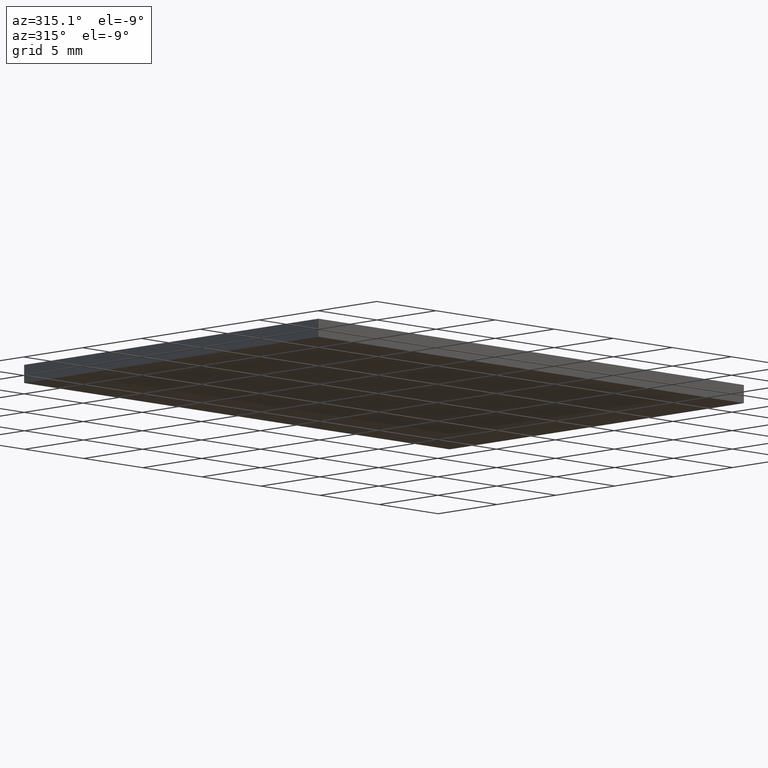
[diagram: clean part render]
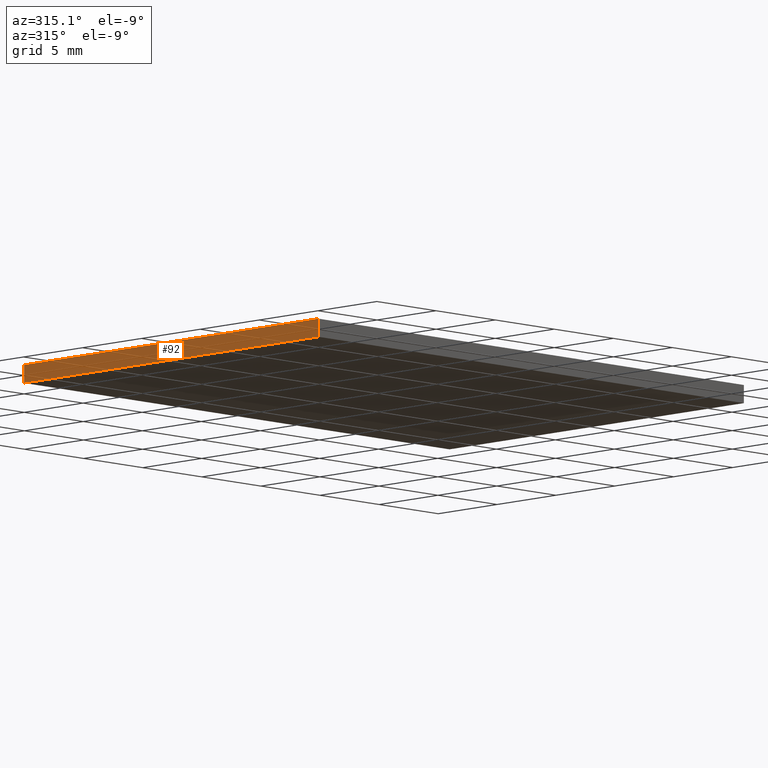
[diagram: same view with one face highlighted and labeled with its STEP entity id]
A machine part, auxiliary view. The second image highlights one B-rep face of the part: STEP entity #92.
In plain terms, the highlighted planar face has unit normal (1, 0, 0).
Its self-contained STEP definition (entity closure, byte-faithful):
#1 = CARTESIAN_POINT ( 'NONE',  ( 0.000000000000000000, 0.000000000000000000, 1.100000000000000089 ) ) ;
#7 = CARTESIAN_POINT ( 'NONE',  ( 0.000000000000000000, 0.000000000000000000, 1.100000000000000089 ) ) ;
#10 = DIRECTION ( 'NONE',  ( -0.000000000000000000, -0.000000000000000000, -1.000000000000000000 ) ) ;
#11 = CARTESIAN_POINT ( 'NONE',  ( 0.000000000000000000, 25.00000000000000000, 0.000000000000000000 ) ) ;
#12 = LINE ( 'NONE', #70, #65 ) ;
#15 = VERTEX_POINT ( 'NONE', #73 ) ;
#18 = FACE_OUTER_BOUND ( 'NONE', #122, .T. ) ;
#23 = CARTESIAN_POINT ( 'NONE',  ( 0.000000000000000000, 0.000000000000000000, 1.100000000000000089 ) ) ;
#25 = EDGE_CURVE ( 'NONE', #93, #123, #118, .T. ) ;
#35 = CARTESIAN_POINT ( 'NONE',  ( 0.000000000000000000, 0.000000000000000000, 0.000000000000000000 ) ) ;
#37 = EDGE_CURVE ( 'NONE', #93, #135, #171, .T. ) ;
#43 = CARTESIAN_POINT ( 'NONE',  ( 0.000000000000000000, 25.00000000000000000, 1.100000000000000089 ) ) ;
#45 = ORIENTED_EDGE ( 'NONE', *, *, #25, .T. ) ;
#65 = VECTOR ( 'NONE', #10, 1000.000000000000000 ) ;
#67 = CARTESIAN_POINT ( 'NONE',  ( 0.000000000000000000, 25.00000000000000000, 1.100000000000000089 ) ) ;
#70 = CARTESIAN_POINT ( 'NONE',  ( 0.000000000000000000, 0.000000000000000000, 1.100000000000000089 ) ) ;
#71 = VECTOR ( 'NONE', #95, 1000.000000000000000 ) ;
#73 = CARTESIAN_POINT ( 'NONE',  ( 0.000000000000000000, 0.000000000000000000, 0.000000000000000000 ) ) ;
#75 = DIRECTION ( 'NONE',  ( -0.000000000000000000, -0.000000000000000000, -1.000000000000000000 ) ) ;
#82 = EDGE_CURVE ( 'NONE', #123, #15, #110, .T. ) ;
#92 = ADVANCED_FACE ( 'NONE', ( #18 ), #159, .F. ) ;
#93 = VERTEX_POINT ( 'NONE', #67 ) ;
#95 = DIRECTION ( 'NONE',  ( -0.000000000000000000, -1.000000000000000000, -0.000000000000000000 ) ) ;
#102 = DIRECTION ( 'NONE',  ( -0.000000000000000000, -1.000000000000000000, -0.000000000000000000 ) ) ;
#109 = ORIENTED_EDGE ( 'NONE', *, *, #37, .F. ) ;
#110 = LINE ( 'NONE', #35, #71 ) ;
#118 = LINE ( 'NONE', #43, #142 ) ;
#122 = EDGE_LOOP ( 'NONE', ( #202, #139, #109, #45 ) ) ;
#123 = VERTEX_POINT ( 'NONE', #11 ) ;
#129 = EDGE_CURVE ( 'NONE', #135, #15, #12, .T. ) ;
#135 = VERTEX_POINT ( 'NONE', #23 ) ;
#139 = ORIENTED_EDGE ( 'NONE', *, *, #129, .F. ) ;
#142 = VECTOR ( 'NONE', #75, 1000.000000000000000 ) ;
#159 = PLANE ( 'NONE',  #184 ) ;
#160 = DIRECTION ( 'NONE',  ( 0.000000000000000000, 0.000000000000000000, -1.000000000000000000 ) ) ;
#170 = VECTOR ( 'NONE', #102, 1000.000000000000000 ) ;
#171 = LINE ( 'NONE', #1, #170 ) ;
#184 = AXIS2_PLACEMENT_3D ( 'NONE', #7, #189, #160 ) ;
#189 = DIRECTION ( 'NONE',  ( 1.000000000000000000, 0.000000000000000000, 0.000000000000000000 ) ) ;
#202 = ORIENTED_EDGE ( 'NONE', *, *, #82, .T. ) ;